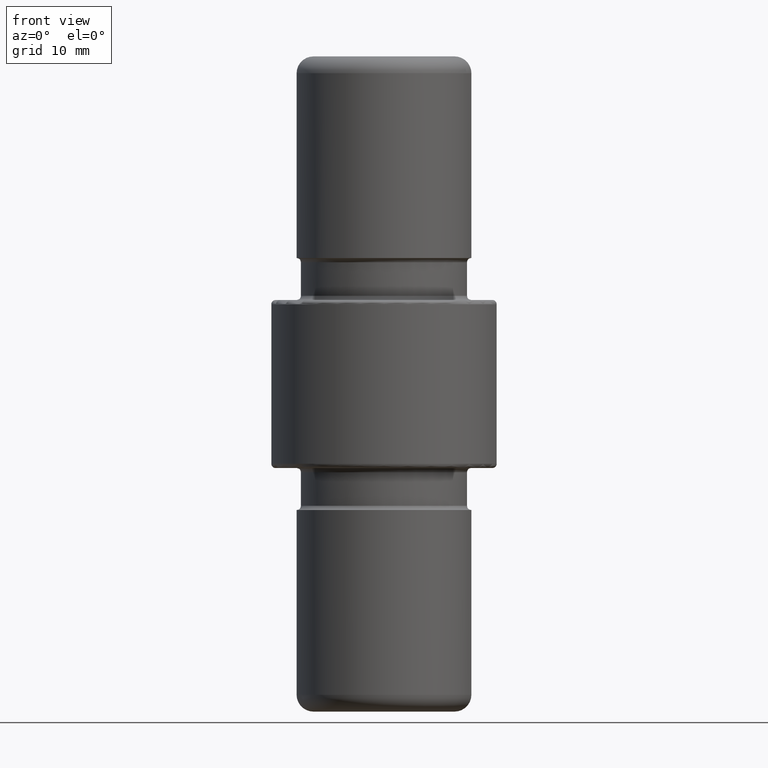
[diagram: clean part render]
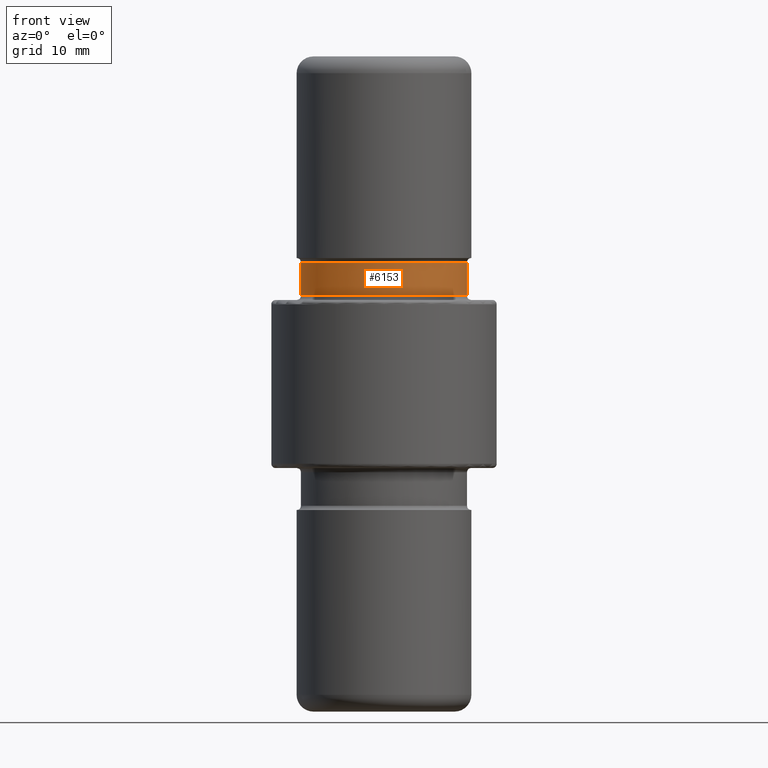
[diagram: same view with one face highlighted and labeled with its STEP entity id]
A machine part, front view. The second image highlights one B-rep face of the part: STEP entity #6153.
In plain terms, the highlighted face is a freeform B-spline surface patch.
Its self-contained STEP definition (entity closure, byte-faithful):
#33 = CARTESIAN_POINT ( 'NONE',  ( 9.938445252907250449, 1.748276003132875900E-15, -14.99999999999996625 ) ) ;
#85 = CARTESIAN_POINT ( 'NONE',  ( 8.792843260445199149, 4.333720882805949692, -10.49999999999998934 ) ) ;
#506 = CARTESIAN_POINT ( 'NONE',  ( 9.938445252907589733, 1.748276003132875900E-15, -9.999999999999968026 ) ) ;
#625 = CARTESIAN_POINT ( 'NONE',  ( 9.882541672953964351, 0.5529260685310697365, -14.49999999999997158 ) ) ;
#760 = CARTESIAN_POINT ( 'NONE',  ( -6.635893152463821387, 7.023542860689994782, -14.99999999999995559 ) ) ;
#787 = CARTESIAN_POINT ( 'NONE',  ( -1.863872780352719749, 9.379619117778789317, -10.49999999999995026 ) ) ;
#793 = CARTESIAN_POINT ( 'NONE',  ( -9.825817731515382292, 1.371266715979112760, -14.99999999999999467 ) ) ;
#850 = CARTESIAN_POINT ( 'NONE',  ( 9.851555155039115164, 0.8440154392545466955, -10.49999999999998401 ) ) ;
#936 = CARTESIAN_POINT ( 'NONE',  ( -8.777349562045468900, 4.347918689127293845, -14.49999999999992539 ) ) ;
#1060 = VERTEX_POINT ( 'NONE', #5481 ) ;
#1189 = CARTESIAN_POINT ( 'NONE',  ( -6.635893152464081624, 7.023542860690304757, -9.999999999999960920 ) ) ;
#1219 = CARTESIAN_POINT ( 'NONE',  ( 6.667888545441856607, 6.996345747839897378, -9.999999999999955591 ) ) ;
#1256 = CARTESIAN_POINT ( 'NONE',  ( -9.940306508910550676, 0.000000000000000000, -15.00000000000000000 ) ) ;
#1442 = CARTESIAN_POINT ( 'NONE',  ( -7.826982113470958069, 5.775747438348949991, -14.99999999999994138 ) ) ;
#1586 = CARTESIAN_POINT ( 'NONE',  ( -5.263194984975683610, 8.055509472029358520, -10.49999999999996625 ) ) ;
#1670 = CARTESIAN_POINT ( 'NONE',  ( 3.700771393332954684, 8.846625492915324074, -14.49999999999992895 ) ) ;
#1934 = CARTESIAN_POINT ( 'NONE',  ( 1.906386145737718696, 9.371285759298423557, -9.999999999999943157 ) ) ;
#1967 = CARTESIAN_POINT ( 'NONE',  ( 9.478366253655996942, 2.680997661151461209, -9.999999999999950262 ) ) ;
#1999 = CARTESIAN_POINT ( 'NONE',  ( -9.903648104310196487, 0.4390687998689558058, -14.99999999999999645 ) ) ;
#2163 = CARTESIAN_POINT ( 'NONE',  ( 6.667888545441548409, 6.996345747839598062, -14.99999999999995204 ) ) ;
#2286 = CARTESIAN_POINT ( 'NONE',  ( -1.863872780352636704, 9.379619117778315029, -14.99999999999995026 ) ) ;
#2295 = CARTESIAN_POINT ( 'NONE',  ( 9.851555155038974831, 0.8440154392544232387, -14.49999999999993960 ) ) ;
#2329 = CARTESIAN_POINT ( 'NONE',  ( 6.667888545441578607, 6.996345747839628260, -14.49999999999991118 ) ) ;
#2428 = CARTESIAN_POINT ( 'NONE',  ( 7.855080366922457813, 5.736089569738503258, -14.49999999999993250 ) ) ;
#2554 = ORIENTED_EDGE ( 'NONE', *, *, #5104, .T. ) ;
#2701 = CARTESIAN_POINT ( 'NONE',  ( 9.786099725731903121, 1.546792200110957971, -9.999999999999996447 ) ) ;
#2766 = CARTESIAN_POINT ( 'NONE',  ( -9.825817731515462228, 1.371266715979138073, -9.999999999999991118 ) ) ;
#2939 = CARTESIAN_POINT ( 'NONE',  ( -9.439884730831156645, 2.816652078137408033, -10.49999999999991651 ) ) ;
#2969 = CARTESIAN_POINT ( 'NONE',  ( -7.826982113471315117, 5.775747438349248419, -10.49999999999994316 ) ) ;
#2990 = EDGE_LOOP ( 'NONE', ( #2554, #5026, #6380, #7353 ) ) ;
#3012 = CARTESIAN_POINT ( 'NONE',  ( 8.792843260445081910, 4.333720882805906172, -14.49999999999993960 ) ) ;
#3043 = CARTESIAN_POINT ( 'NONE',  ( 0.02166753773790984494, 9.563520647635819216, -14.49999999999990941 ) ) ;
#3066 = CARTESIAN_POINT ( 'NONE',  ( -9.778243775934180704, 1.549439349299472468, -10.49999999999998401 ) ) ;
#3423 = CARTESIAN_POINT ( 'NONE',  ( 5.299982552813943038, 8.032078801691721281, -9.999999999999952038 ) ) ;
#3458 = CARTESIAN_POINT ( 'NONE',  ( 9.890842408074256298, 0.4833204522399736081, -9.999999999999975131 ) ) ;
#3689 = CARTESIAN_POINT ( 'NONE',  ( 9.890842408074009384, 0.4833204522399858760, -14.99999999999997335 ) ) ;
#3714 = CARTESIAN_POINT ( 'NONE',  ( -3.660441188941566004, 8.862209349024670502, -10.49999999999996270 ) ) ;
#3721 = CARTESIAN_POINT ( 'NONE',  ( 8.792843260445067699, 4.333720882805900843, -14.99999999999998224 ) ) ;
#3748 = CARTESIAN_POINT ( 'NONE',  ( 7.855080366922439161, 5.736089569738489935, -14.99999999999997335 ) ) ;
#3790 = CARTESIAN_POINT ( 'NONE',  ( -1.863872780352645808, 9.379619117778366544, -14.49999999999990941 ) ) ;
#3804 = FACE_OUTER_BOUND ( 'NONE', #2990, .T. ) ;
#3807 = CARTESIAN_POINT ( 'NONE',  ( 0.02166753773791396664, 9.563520647636151395, -10.49999999999995737 ) ) ;
#3825 = CARTESIAN_POINT ( 'NONE',  ( -7.826982113470998037, 5.775747438348984630, -14.49999999999990052 ) ) ;
#3934 = LINE ( 'NONE', #8082, #9196 ) ;
#4044 = VERTEX_POINT ( 'NONE', #625 ) ;
#4060 = LINE ( 'NONE', #6061, #4616 ) ;
#4202 = VERTEX_POINT ( 'NONE', #5944 ) ;
#4225 = CARTESIAN_POINT ( 'NONE',  ( 7.855080366922621238, 5.736089569738630267, -9.999999999999975131 ) ) ;
#4286 = EDGE_CURVE ( 'NONE', #4044, #7754, #9430, .T. ) ;
#4336 = B_SPLINE_SURFACE_WITH_KNOTS ( 'NONE', 1, 3, ( 
 ( #4910, #5657, #2766, #6452, #7144, #7203, #1189, #8632, #6389, #7987, #5692, #1934, #7890, #3423, #1219, #4225, #6421, #1967, #2701, #3458, #506 ),
 ( #1256, #1999, #793, #5938, #9683, #1442, #760, #8953, #8153, #2286, #8215, #4414, #5144, #6648, #2163, #3748, #3721, #8244, #5226, #3689, #33 ) ),
 .UNSPECIFIED., .F., .F., .F.,
 ( 2, 2 ),
 ( 4, 1, 1, 1, 1, 1, 1, 1, 1, 1, 1, 1, 1, 1, 1, 1, 1, 1, 4 ),
 ( 0.1155125906710128270, 0.5000000000000000000 ),
 ( 0.000000000000000000, 0.04343242772470748414, 0.09221247018385551886, 0.1469151630865900282, 0.2075340397335442011, 0.2604415616021577007, 0.3166842149931480832, 0.3759010096925574640, 0.4372131423064769540, 0.4996162499816951263, 0.5620192205893361770, 0.6233313951237815509, 0.6825481676295783728, 0.7387907938329381086, 0.7916983835627314781, 0.8523172693487988116, 0.9070199638773146500, 0.9577429741804884822, 1.000000000000000000 ),
 .UNSPECIFIED. ) ;
#4414 = CARTESIAN_POINT ( 'NONE',  ( 1.906386145737587468, 9.371285759297856899, -14.99999999999994316 ) ) ;
#4518 = CARTESIAN_POINT ( 'NONE',  ( 5.299982552813911951, 8.032078801691669767, -10.49999999999995381 ) ) ;
#4535 = CARTESIAN_POINT ( 'NONE',  ( -5.263194984975537061, 8.055509472029086737, -14.49999999999992006 ) ) ;
#4553 = CARTESIAN_POINT ( 'NONE',  ( 7.855080366922601698, 5.736089569738615168, -10.49999999999997868 ) ) ;
#4564 = CARTESIAN_POINT ( 'NONE',  ( 9.752273290323786981, 1.671465436039778263, -14.49999999999995204 ) ) ;
#4600 = CARTESIAN_POINT ( 'NONE',  ( -6.635893152463847144, 7.023542860690024980, -14.49999999999991651 ) ) ;
#4616 = VECTOR ( 'NONE', #5363, 1000.000000000000000 ) ;
#4779 = EDGE_CURVE ( 'NONE', #7754, #1060, #3934, .T. ) ;
#4910 = CARTESIAN_POINT ( 'NONE',  ( -9.940306508910550676, 0.000000000000000000, -10.00000000000000000 ) ) ;
#5026 = ORIENTED_EDGE ( 'NONE', *, *, #6272, .T. ) ;
#5104 = EDGE_CURVE ( 'NONE', #1060, #4202, #6488, .T. ) ;
#5137 = DIRECTION ( 'NONE',  ( -0.000000000000000000, -0.000000000000000000, 1.000000000000000000 ) ) ;
#5144 = CARTESIAN_POINT ( 'NONE',  ( 3.700771393332946690, 8.846625492915308087, -14.99999999999997158 ) ) ;
#5221 = CARTESIAN_POINT ( 'NONE',  ( -8.777349562045626996, 4.347918689127391545, -10.49999999999997335 ) ) ;
#5226 = CARTESIAN_POINT ( 'NONE',  ( 9.786099725731855159, 1.546792200110997273, -15.00000000000000000 ) ) ;
#5262 = CARTESIAN_POINT ( 'NONE',  ( 9.478366253655492457, 2.680997661151280020, -14.49999999999990585 ) ) ;
#5283 = CARTESIAN_POINT ( 'NONE',  ( 6.667888545441825521, 6.996345747839867180, -10.49999999999995737 ) ) ;
#5299 = CARTESIAN_POINT ( 'NONE',  ( -9.778243775936122262, 1.549439349291618306, -14.49999999999994138 ) ) ;
#5317 = CARTESIAN_POINT ( 'NONE',  ( 9.478366253655940099, 2.680997661151441225, -10.49999999999995026 ) ) ;
#5363 = DIRECTION ( 'NONE',  ( 0.000000000000000000, 0.000000000000000000, -1.000000000000000000 ) ) ;
#5371 = CARTESIAN_POINT ( 'NONE',  ( -9.866735516816675045, 0.8042661768670618105, -14.49999999999995381 ) ) ;
#5481 = CARTESIAN_POINT ( 'NONE',  ( -9.891805438738881406, 0.5488400130395502119, -10.49999999999999822 ) ) ;
#5657 = CARTESIAN_POINT ( 'NONE',  ( -9.903648104310223133, 0.4390687998689640215, -9.999999999999996447 ) ) ;
#5692 = CARTESIAN_POINT ( 'NONE',  ( 0.02166753773791448359, 9.563520647636194028, -9.999999999999955591 ) ) ;
#5938 = CARTESIAN_POINT ( 'NONE',  ( -9.439884730830360837, 2.816652078137135806, -14.99999999999991473 ) ) ;
#5944 = CARTESIAN_POINT ( 'NONE',  ( 9.882541672954131329, 0.5529260685312686885, -10.49999999999997158 ) ) ;
#5990 = CARTESIAN_POINT ( 'NONE',  ( -9.866735516814827633, 0.8042661768830366986, -10.49999999999999467 ) ) ;
#6054 = CARTESIAN_POINT ( 'NONE',  ( 9.882541672954131329, 0.5529260685312686885, -10.49999999999997158 ) ) ;
#6061 = CARTESIAN_POINT ( 'NONE',  ( 9.882541672954159750, 0.5529260685310376511, -10.49999999999997513 ) ) ;
#6082 = CARTESIAN_POINT ( 'NONE',  ( 1.906386145737705373, 9.371285759298364937, -10.49999999999994493 ) ) ;
#6153 = ADVANCED_FACE ( 'NONE', ( #3804 ), #4336, .F. ) ;
#6272 = EDGE_CURVE ( 'NONE', #4202, #4044, #4060, .T. ) ;
#6380 = ORIENTED_EDGE ( 'NONE', *, *, #4286, .T. ) ;
#6389 = CARTESIAN_POINT ( 'NONE',  ( -3.660441188941578883, 8.862209349024702476, -9.999999999999960920 ) ) ;
#6421 = CARTESIAN_POINT ( 'NONE',  ( 8.792843260445213360, 4.333720882805955021, -9.999999999999985789 ) ) ;
#6452 = CARTESIAN_POINT ( 'NONE',  ( -9.439884730831245463, 2.816652078137438675, -9.999999999999914735 ) ) ;
#6488 = B_SPLINE_CURVE_WITH_KNOTS ( 'NONE', 3,
 ( #8274, #5990, #3066, #2939, #5221, #2969, #8238, #1586, #3714, #787, #3807, #6082, #9077, #4518, #5283, #4553, #85, #5317, #8207, #850, #6054 ),
 .UNSPECIFIED., .F., .F.,
 ( 4, 1, 1, 1, 1, 1, 1, 1, 1, 1, 1, 1, 1, 1, 1, 1, 1, 1, 4 ),
 ( 0.0005504397537662155749, 0.001321863642105085626, 0.002807915152110622946, 0.004474396263879987581, 0.006321109973723260111, 0.007932902395374983109, 0.009646297377931526210, 0.01145029759491457237, 0.01331813088613975973, 0.01521920000610738760, 0.01712026495040255142, 0.01898809951870864335, 0.02079209905957806262, 0.02250549321388154236, 0.02411728770287892287, 0.02596400169113918799, 0.02763048285243690019, 0.02917572558395326032, 0.02996851605446185229 ),
 .UNSPECIFIED. ) ;
#6648 = CARTESIAN_POINT ( 'NONE',  ( 5.299982552813633951, 8.032078801691211467, -14.99999999999995026 ) ) ;
#6865 = CARTESIAN_POINT ( 'NONE',  ( -3.660441188941465196, 8.862209349024409377, -14.49999999999991473 ) ) ;
#7144 = CARTESIAN_POINT ( 'NONE',  ( -8.777349562045648312, 4.347918689127403979, -9.999999999999971578 ) ) ;
#7203 = CARTESIAN_POINT ( 'NONE',  ( -7.826982113471355085, 5.775747438349281282, -9.999999999999941380 ) ) ;
#7353 = ORIENTED_EDGE ( 'NONE', *, *, #4779, .T. ) ;
#7529 = CARTESIAN_POINT ( 'NONE',  ( 5.299982552813665038, 8.032078801691261205, -14.49999999999990941 ) ) ;
#7754 = VERTEX_POINT ( 'NONE', #8875 ) ;
#7890 = CARTESIAN_POINT ( 'NONE',  ( 3.700771393333027071, 8.846625492915460853, -9.999999999999973355 ) ) ;
#7987 = CARTESIAN_POINT ( 'NONE',  ( -1.863872780352729075, 9.379619117778840831, -9.999999999999948486 ) ) ;
#8082 = CARTESIAN_POINT ( 'NONE',  ( -9.891805438738872525, 0.5488400130393104037, -14.49999999999998934 ) ) ;
#8153 = CARTESIAN_POINT ( 'NONE',  ( -3.660441188941452761, 8.862209349024377403, -14.99999999999995381 ) ) ;
#8207 = CARTESIAN_POINT ( 'NONE',  ( 9.752273290323858035, 1.671465436039816677, -10.49999999999999289 ) ) ;
#8215 = CARTESIAN_POINT ( 'NONE',  ( 0.02166753773790933146, 9.563520647635776584, -14.99999999999995026 ) ) ;
#8238 = CARTESIAN_POINT ( 'NONE',  ( -6.635893152464055866, 7.023542860690272782, -10.49999999999996270 ) ) ;
#8244 = CARTESIAN_POINT ( 'NONE',  ( 9.478366253655435614, 2.680997661151260036, -14.99999999999994671 ) ) ;
#8249 = CARTESIAN_POINT ( 'NONE',  ( 1.906386145737600568, 9.371285759297911966, -14.49999999999990230 ) ) ;
#8274 = CARTESIAN_POINT ( 'NONE',  ( -9.891805438738881406, 0.5488400130395502119, -10.49999999999999822 ) ) ;
#8287 = CARTESIAN_POINT ( 'NONE',  ( 9.882541672953964351, 0.5529260685310697365, -14.49999999999997158 ) ) ;
#8388 = CARTESIAN_POINT ( 'NONE',  ( -9.439884730830449655, 2.816652078137166448, -14.49999999999987210 ) ) ;
#8632 = CARTESIAN_POINT ( 'NONE',  ( -5.263194984975702262, 8.055509472029394047, -9.999999999999964473 ) ) ;
#8875 = CARTESIAN_POINT ( 'NONE',  ( -9.891805438741206657, 0.5488400130155285384, -14.49999999999999289 ) ) ;
#8953 = CARTESIAN_POINT ( 'NONE',  ( -5.263194984975519297, 8.055509472029051210, -14.99999999999996270 ) ) ;
#9077 = CARTESIAN_POINT ( 'NONE',  ( 3.700771393333018633, 8.846625492915444866, -10.49999999999997691 ) ) ;
#9129 = CARTESIAN_POINT ( 'NONE',  ( -9.891805438741206657, 0.5488400130155285384, -14.49999999999999289 ) ) ;
#9196 = VECTOR ( 'NONE', #5137, 1000.000000000000000 ) ;
#9430 = B_SPLINE_CURVE_WITH_KNOTS ( 'NONE', 3,
 ( #8287, #2295, #4564, #5262, #3012, #2428, #2329, #7529, #1670, #8249, #3043, #3790, #6865, #4535, #4600, #3825, #936, #8388, #5299, #5371, #9129 ),
 .UNSPECIFIED., .F., .F.,
 ( 4, 1, 1, 1, 1, 1, 1, 1, 1, 1, 1, 1, 1, 1, 1, 1, 1, 1, 4 ),
 ( 0.0005531826982676520772, 0.001337236719314262128, 0.002865451073809360729, 0.004513567826115119468, 0.006339931262710490553, 0.007933963982841624532, 0.009628476752977791625, 0.01141259644992264830, 0.01325984772047638857, 0.01513996317253120567, 0.01702008275424310782, 0.01886733276178920865, 0.02065145312739700631, 0.02234596671665899786, 0.02393999739222635662, 0.02576636055347285292, 0.02741447725679606665, 0.02888415266946150681, 0.02964707556536146441 ),
 .UNSPECIFIED. ) ;
#9683 = CARTESIAN_POINT ( 'NONE',  ( -8.777349562045449360, 4.347918689127281411, -14.99999999999996803 ) ) ;